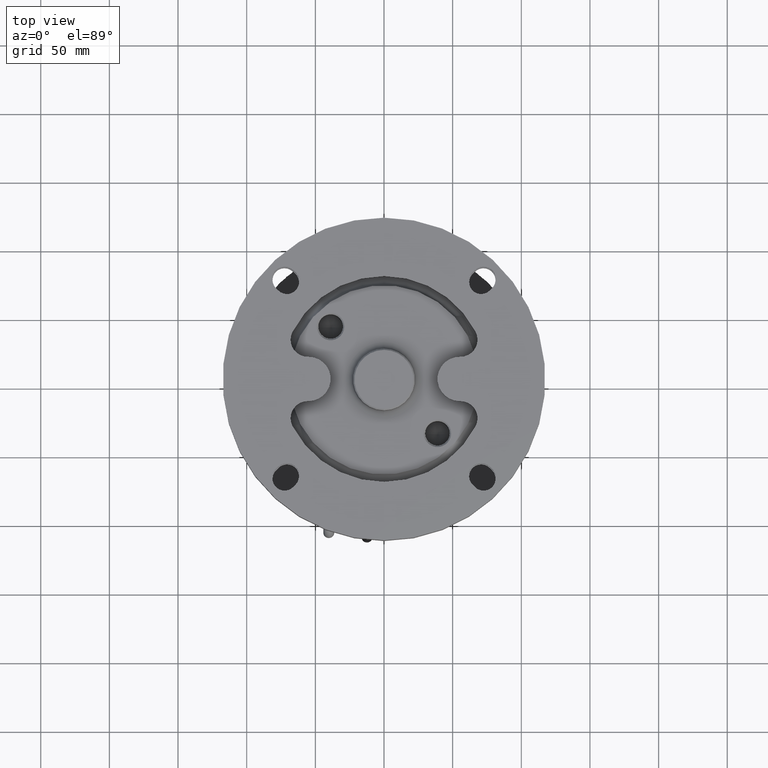
[diagram: clean part render]
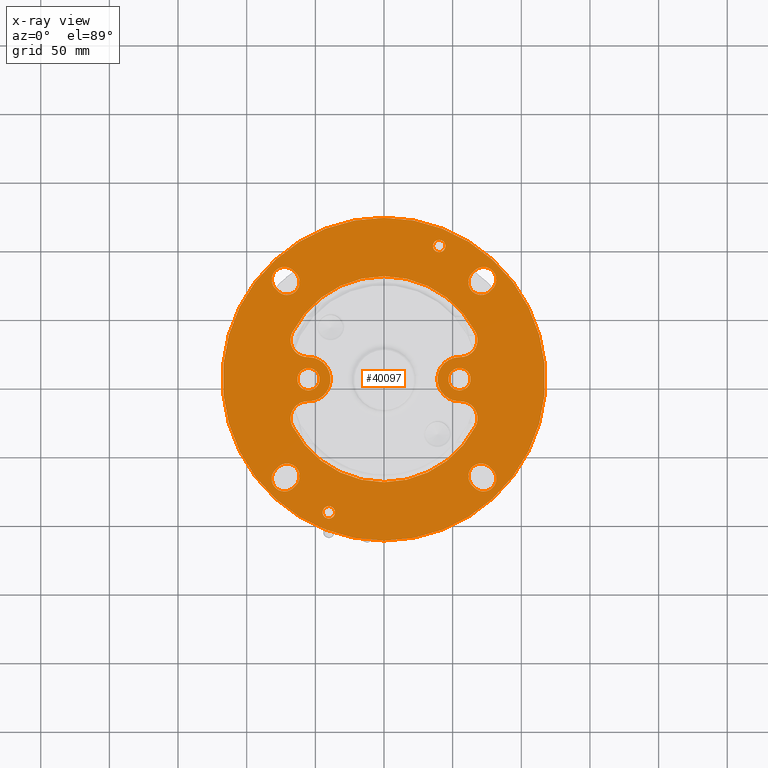
[diagram: x-ray — body ghosted, one internal face saturated and labeled with its STEP entity id]
A machine part, top view, then the same camera in x-ray: the body is ghosted and one INTERNAL B-rep face — a face not visible from any outside direction — is saturated and labeled: STEP entity #40097.
In plain terms, the highlighted planar face has unit normal (0, 0, -1).
Its self-contained STEP definition (entity closure, byte-faithful):
#87 = VERTEX_POINT ( 'NONE', #25369 ) ;
#223 = VERTEX_POINT ( 'NONE', #40221 ) ;
#416 = DIRECTION ( 'NONE',  ( 1.000000000000000000, 0.0000000000000000000, 0.0000000000000000000 ) ) ;
#529 = VERTEX_POINT ( 'NONE', #31885 ) ;
#621 = CARTESIAN_POINT ( 'NONE',  ( -77.25141584462990400, -64.16994039267960700, -5.000000000000000000 ) ) ;
#686 = CARTESIAN_POINT ( 'NONE',  ( -77.25141584462998900, 64.16994039267960700, -5.000000000000000000 ) ) ;
#834 = CARTESIAN_POINT ( 'NONE',  ( -66.68686227436400300, -34.32000000000000000, -5.000000000000000000 ) ) ;
#922 = DIRECTION ( 'NONE',  ( 0.0000000000000000000, 1.000000000000000000, 0.0000000000000000000 ) ) ;
#976 = VERTEX_POINT ( 'NONE', #24573 ) ;
#998 = CIRCLE ( 'NONE', #2788, 16.10000000000000100 ) ;
#1062 = AXIS2_PLACEMENT_3D ( 'NONE', #29042, #1649, #36020 ) ;
#1110 = CARTESIAN_POINT ( 'NONE',  ( -40.18176039833385000, -92.50735091368530000, -5.000000000000000000 ) ) ;
#1132 = EDGE_CURVE ( 'NONE', #17272, #34413, #35323, .T. ) ;
#1177 = CIRCLE ( 'NONE', #14926, 8.099999999999999600 ) ;
#1201 = DIRECTION ( 'NONE',  ( 0.0000000000000000000, 1.000000000000000000, 0.0000000000000000000 ) ) ;
#1324 = AXIS2_PLACEMENT_3D ( 'NONE', #8229, #39067, #32325 ) ;
#1541 = ORIENTED_EDGE ( 'NONE', *, *, #9506, .F. ) ;
#1649 = DIRECTION ( 'NONE',  ( 0.0000000000000000000, 0.0000000000000000000, -1.000000000000000000 ) ) ;
#1710 = DIRECTION ( 'NONE',  ( 0.7071067811865450200, -0.7071067811865500200, 0.0000000000000000000 ) ) ;
#1790 = FACE_BOUND ( 'NONE', #43918, .T. ) ;
#1874 = CARTESIAN_POINT ( 'NONE',  ( 64.16994039267879700, -77.25141584463069900, -5.000000000000000000 ) ) ;
#1987 = DIRECTION ( 'NONE',  ( 0.0000000000000000000, 0.0000000000000000000, -1.000000000000000000 ) ) ;
#2109 = CARTESIAN_POINT ( 'NONE',  ( -65.93770734564509400, -79.01918279759709700, -5.000000000000000000 ) ) ;
#2311 = DIRECTION ( 'NONE',  ( 0.0000000000000000000, -1.000000000000000000, 0.0000000000000000000 ) ) ;
#2603 = DIRECTION ( 'NONE',  ( 0.0000000000000000000, 1.000000000000000000, 0.0000000000000000000 ) ) ;
#2788 = AXIS2_PLACEMENT_3D ( 'NONE', #29937, #9418, #16471 ) ;
#2880 = EDGE_LOOP ( 'NONE', ( #30094, #40213, #23121, #33719, #16397, #1541, #30459, #32265, #19745, #27854, #22064, #26514, #12609 ) ) ;
#2971 = CARTESIAN_POINT ( 'NONE',  ( 40.18176039833385000, 101.5073509136853000, -5.000000000000000000 ) ) ;
#3054 = AXIS2_PLACEMENT_3D ( 'NONE', #31293, #21423, #922 ) ;
#3130 = ORIENTED_EDGE ( 'NONE', *, *, #38947, .T. ) ;
#3463 = DIRECTION ( 'NONE',  ( 0.0000000000000000000, 1.000000000000000000, 0.0000000000000000000 ) ) ;
#3674 = EDGE_CURVE ( 'NONE', #18412, #33344, #998, .T. ) ;
#3845 = AXIS2_PLACEMENT_3D ( 'NONE', #15317, #42694, #12027 ) ;
#3861 = VERTEX_POINT ( 'NONE', #14191 ) ;
#4079 = CIRCLE ( 'NONE', #42980, 117.5000000000000000 ) ;
#4274 = CARTESIAN_POINT ( 'NONE',  ( -55.00000000000000000, 16.10000000000000100, -5.000000000000000000 ) ) ;
#4341 = DIRECTION ( 'NONE',  ( 0.0000000000000000000, 0.0000000000000000000, -1.000000000000000000 ) ) ;
#4467 = FACE_BOUND ( 'NONE', #24008, .T. ) ;
#4511 = VERTEX_POINT ( 'NONE', #41364 ) ;
#4536 = CARTESIAN_POINT ( 'NONE',  ( 55.00000000000000000, 16.10000000000000100, -5.000000000000000000 ) ) ;
#4575 = EDGE_CURVE ( 'NONE', #15392, #223, #33592, .T. ) ;
#4617 = CARTESIAN_POINT ( 'NONE',  ( -70.71067811865438600, 61.46067811865519600, -5.000000000000000000 ) ) ;
#4641 = CARTESIAN_POINT ( 'NONE',  ( -55.00000000000000000, 16.10000000000000100, -5.000000000000000000 ) ) ;
#4791 = CARTESIAN_POINT ( 'NONE',  ( 72.47844507162069800, -72.47844507162150800, -5.000000000000000000 ) ) ;
#4825 = CIRCLE ( 'NONE', #44010, 12.50000000000000000 ) ;
#4832 = DIRECTION ( 'NONE',  ( 0.7071067811865420200, -0.7071067811865531200, 0.0000000000000000000 ) ) ;
#5047 = ORIENTED_EDGE ( 'NONE', *, *, #41426, .F. ) ;
#5118 = CARTESIAN_POINT ( 'NONE',  ( 77.25141584462990400, -64.16994039267960700, -5.000000000000000000 ) ) ;
#5153 = DIRECTION ( 'NONE',  ( -0.7071067811865420200, 0.7071067811865531200, 0.0000000000000000000 ) ) ;
#5344 = AXIS2_PLACEMENT_3D ( 'NONE', #25785, #1987, #25935 ) ;
#5448 = EDGE_CURVE ( 'NONE', #40456, #4511, #21227, .T. ) ;
#5501 = AXIS2_PLACEMENT_3D ( 'NONE', #35928, #12153, #32201 ) ;
#5545 = FACE_BOUND ( 'NONE', #37853, .T. ) ;
#5578 = LINE ( 'NONE', #21145, #24357 ) ;
#5620 = CIRCLE ( 'NONE', #37645, 4.500000000000003600 ) ;
#5858 = VERTEX_POINT ( 'NONE', #28380 ) ;
#6037 = VERTEX_POINT ( 'NONE', #28326 ) ;
#6158 = VERTEX_POINT ( 'NONE', #37298 ) ;
#6178 = VERTEX_POINT ( 'NONE', #20296 ) ;
#6296 = AXIS2_PLACEMENT_3D ( 'NONE', #36597, #19587, #36313 ) ;
#6321 = EDGE_CURVE ( 'NONE', #17104, #40456, #7752, .T. ) ;
#6322 = VECTOR ( 'NONE', #8287, 999.9999999999998900 ) ;
#6710 = CARTESIAN_POINT ( 'NONE',  ( 70.71067811865420100, 61.46067811865519600, -5.000000000000000000 ) ) ;
#7307 = CARTESIAN_POINT ( 'NONE',  ( -55.57238522863669800, 28.60000000000000100, -5.000000000000000000 ) ) ;
#7423 = ORIENTED_EDGE ( 'NONE', *, *, #10870, .F. ) ;
#7444 = EDGE_CURVE ( 'NONE', #13512, #6178, #27053, .T. ) ;
#7495 = CARTESIAN_POINT ( 'NONE',  ( -55.57238522863669800, 16.10000000000000100, -5.000000000000000000 ) ) ;
#7751 = CARTESIAN_POINT ( 'NONE',  ( 0.0000000000000000000, 0.0000000000000000000, -5.000000000000000000 ) ) ;
#7752 = LINE ( 'NONE', #38959, #24365 ) ;
#7778 = CARTESIAN_POINT ( 'NONE',  ( 55.00000000000000000, -16.10000000000000100, -5.000000000000000000 ) ) ;
#7791 = CARTESIAN_POINT ( 'NONE',  ( 64.16994039267869700, 77.25141584463069900, -5.000000000000000000 ) ) ;
#7896 = DIRECTION ( 'NONE',  ( 0.0000000000000000000, 0.0000000000000000000, -1.000000000000000000 ) ) ;
#8221 = VECTOR ( 'NONE', #12176, 999.9999999999998900 ) ;
#8229 = CARTESIAN_POINT ( 'NONE',  ( 55.57238522863669800, 28.60000000000000100, -5.000000000000000000 ) ) ;
#8253 = DIRECTION ( 'NONE',  ( 0.0000000000000000000, -1.000000000000000000, 0.0000000000000000000 ) ) ;
#8259 = CARTESIAN_POINT ( 'NONE',  ( -64.16994039267879700, 77.25141584463069900, -5.000000000000000000 ) ) ;
#8287 = DIRECTION ( 'NONE',  ( -0.7071067811865420200, -0.7071067811865531200, 0.0000000000000000000 ) ) ;
#8447 = CARTESIAN_POINT ( 'NONE',  ( -55.57238522863669800, -16.10000000000000100, -5.000000000000000000 ) ) ;
#8540 = EDGE_CURVE ( 'NONE', #976, #40642, #25360, .T. ) ;
#8776 = EDGE_CURVE ( 'NONE', #34063, #20949, #22095, .T. ) ;
#8893 = DIRECTION ( 'NONE',  ( 0.0000000000000000000, 0.0000000000000000000, -1.000000000000000000 ) ) ;
#9079 = ORIENTED_EDGE ( 'NONE', *, *, #40163, .F. ) ;
#9163 = VERTEX_POINT ( 'NONE', #7778 ) ;
#9220 = FACE_BOUND ( 'NONE', #34138, .T. ) ;
#9305 = CARTESIAN_POINT ( 'NONE',  ( 70.71067811865438600, -70.71067811865519600, -5.000000000000000000 ) ) ;
#9418 = DIRECTION ( 'NONE',  ( 0.0000000000000000000, 0.0000000000000000000, 1.000000000000000000 ) ) ;
#9506 = EDGE_CURVE ( 'NONE', #38795, #18412, #29445, .T. ) ;
#9635 = ORIENTED_EDGE ( 'NONE', *, *, #41219, .F. ) ;
#9748 = CIRCLE ( 'NONE', #21694, 4.500000000000003600 ) ;
#9808 = CARTESIAN_POINT ( 'NONE',  ( 65.93770734564509400, -79.01918279759709700, -5.000000000000000000 ) ) ;
#9984 = ORIENTED_EDGE ( 'NONE', *, *, #29375, .F. ) ;
#10011 = DIRECTION ( 'NONE',  ( 0.0000000000000000000, 0.0000000000000000000, -1.000000000000000000 ) ) ;
#10255 = DIRECTION ( 'NONE',  ( 0.0000000000000000000, 0.0000000000000000000, -1.000000000000000000 ) ) ;
#10374 = EDGE_CURVE ( 'NONE', #33344, #38220, #27906, .T. ) ;
#10402 = DIRECTION ( 'NONE',  ( 0.0000000000000000000, 1.000000000000000000, 0.0000000000000000000 ) ) ;
#10449 = ORIENTED_EDGE ( 'NONE', *, *, #40347, .F. ) ;
#10637 = DIRECTION ( 'NONE',  ( 0.0000000000000000000, 0.0000000000000000000, -1.000000000000000000 ) ) ;
#10649 = VERTEX_POINT ( 'NONE', #2971 ) ;
#10770 = DIRECTION ( 'NONE',  ( 0.0000000000000000000, 1.000000000000000000, 0.0000000000000000000 ) ) ;
#10868 = FACE_BOUND ( 'NONE', #33636, .T. ) ;
#10870 = EDGE_CURVE ( 'NONE', #87, #39557, #28256, .T. ) ;
#10947 = DIRECTION ( 'NONE',  ( 0.7071067811865420200, 0.7071067811865531200, 0.0000000000000000000 ) ) ;
#10989 = CARTESIAN_POINT ( 'NONE',  ( -55.00000000000000000, -1.347111479062089800E-014, -5.000000000000000000 ) ) ;
#11263 = DIRECTION ( 'NONE',  ( -0.7071067811865450200, -0.7071067811865500200, 0.0000000000000000000 ) ) ;
#11356 = CARTESIAN_POINT ( 'NONE',  ( 65.93770734564499500, 79.01918279759709700, -5.000000000000000000 ) ) ;
#11366 = DIRECTION ( 'NONE',  ( 0.0000000000000000000, 0.0000000000000000000, -1.000000000000000000 ) ) ;
#11615 = VECTOR ( 'NONE', #12620, 1000.000000000000000 ) ;
#11921 = EDGE_LOOP ( 'NONE', ( #42564, #41409, #36081, #38493, #43648 ) ) ;
#12012 = DIRECTION ( 'NONE',  ( 0.0000000000000000000, 0.0000000000000000000, 1.000000000000000000 ) ) ;
#12027 = DIRECTION ( 'NONE',  ( 0.0000000000000000000, -1.000000000000000000, 0.0000000000000000000 ) ) ;
#12040 = CARTESIAN_POINT ( 'NONE',  ( 77.25141584462980400, 64.16994039267960700, -5.000000000000000000 ) ) ;
#12069 = EDGE_CURVE ( 'NONE', #27097, #31397, #22241, .T. ) ;
#12153 = DIRECTION ( 'NONE',  ( 0.0000000000000000000, 0.0000000000000000000, -1.000000000000000000 ) ) ;
#12176 = DIRECTION ( 'NONE',  ( -0.7071067811865420200, 0.7071067811865531200, 0.0000000000000000000 ) ) ;
#12333 = VERTEX_POINT ( 'NONE', #28866 ) ;
#12359 = CIRCLE ( 'NONE', #27145, 9.249999999999994700 ) ;
#12423 = AXIS2_PLACEMENT_3D ( 'NONE', #28804, #12012, #8253 ) ;
#12512 = CARTESIAN_POINT ( 'NONE',  ( 55.00000000000000000, -1.347111479062089800E-014, -5.000000000000000000 ) ) ;
#12609 = ORIENTED_EDGE ( 'NONE', *, *, #19699, .F. ) ;
#12620 = DIRECTION ( 'NONE',  ( 1.000000000000000000, 0.0000000000000000000, 0.0000000000000000000 ) ) ;
#12642 = EDGE_CURVE ( 'NONE', #31397, #87, #40368, .T. ) ;
#12870 = CARTESIAN_POINT ( 'NONE',  ( 40.18176039833385000, 92.50735091368530000, -5.000000000000000000 ) ) ;
#13160 = EDGE_CURVE ( 'NONE', #25033, #13512, #28048, .T. ) ;
#13285 = CARTESIAN_POINT ( 'NONE',  ( -64.16994039267879700, -77.25141584463069900, -5.000000000000000000 ) ) ;
#13307 = DIRECTION ( 'NONE',  ( 0.0000000000000000000, 0.0000000000000000000, -1.000000000000000000 ) ) ;
#13512 = VERTEX_POINT ( 'NONE', #29216 ) ;
#13898 = AXIS2_PLACEMENT_3D ( 'NONE', #27929, #34755, #23826 ) ;
#14113 = CARTESIAN_POINT ( 'NONE',  ( 77.25141584462980400, 64.16994039267960700, -5.000000000000000000 ) ) ;
#14191 = CARTESIAN_POINT ( 'NONE',  ( 0.0000000000000000000, -75.00000000000000000, -5.000000000000000000 ) ) ;
#14209 = EDGE_CURVE ( 'NONE', #223, #15392, #34340, .T. ) ;
#14273 = DIRECTION ( 'NONE',  ( 0.0000000000000000000, -1.000000000000000000, 0.0000000000000000000 ) ) ;
#14595 = CARTESIAN_POINT ( 'NONE',  ( 55.00000000000000000, -1.347111479062089800E-014, -5.000000000000000000 ) ) ;
#14733 = DIRECTION ( 'NONE',  ( 0.0000000000000000000, 0.0000000000000000000, -1.000000000000000000 ) ) ;
#14905 = CIRCLE ( 'NONE', #5344, 9.249999999999994700 ) ;
#14926 = AXIS2_PLACEMENT_3D ( 'NONE', #12512, #8893, #36421 ) ;
#15161 = EDGE_LOOP ( 'NONE', ( #33029, #26703 ) ) ;
#15175 = DIRECTION ( 'NONE',  ( 0.0000000000000000000, 0.0000000000000000000, 1.000000000000000000 ) ) ;
#15224 = VECTOR ( 'NONE', #4832, 999.9999999999998900 ) ;
#15303 = EDGE_CURVE ( 'NONE', #38220, #32013, #4825, .T. ) ;
#15317 = CARTESIAN_POINT ( 'NONE',  ( -72.47844507162069800, -72.47844507162150800, -5.000000000000000000 ) ) ;
#15392 = VERTEX_POINT ( 'NONE', #22014 ) ;
#15409 = ORIENTED_EDGE ( 'NONE', *, *, #8540, .F. ) ;
#15620 = ORIENTED_EDGE ( 'NONE', *, *, #14209, .F. ) ;
#16001 = ORIENTED_EDGE ( 'NONE', *, *, #42262, .F. ) ;
#16037 = AXIS2_PLACEMENT_3D ( 'NONE', #7751, #38894, #28615 ) ;
#16080 = LINE ( 'NONE', #621, #19835 ) ;
#16110 = VECTOR ( 'NONE', #24998, 1000.000000000000000 ) ;
#16188 = EDGE_LOOP ( 'NONE', ( #29406, #39874 ) ) ;
#16277 = LINE ( 'NONE', #1874, #8221 ) ;
#16397 = ORIENTED_EDGE ( 'NONE', *, *, #3674, .F. ) ;
#16471 = DIRECTION ( 'NONE',  ( 0.0000000000000000000, -1.000000000000000000, 0.0000000000000000000 ) ) ;
#16666 = DIRECTION ( 'NONE',  ( 0.0000000000000000000, 0.0000000000000000000, -1.000000000000000000 ) ) ;
#16903 = DIRECTION ( 'NONE',  ( 0.0000000000000000000, 0.0000000000000000000, -1.000000000000000000 ) ) ;
#16924 = CARTESIAN_POINT ( 'NONE',  ( -66.68686227436400300, 34.32000000000000000, -5.000000000000000000 ) ) ;
#17104 = VERTEX_POINT ( 'NONE', #13285 ) ;
#17173 = CARTESIAN_POINT ( 'NONE',  ( -55.00000000000000000, -16.10000000000000100, -5.000000000000000000 ) ) ;
#17272 = VERTEX_POINT ( 'NONE', #26113 ) ;
#17398 = AXIS2_PLACEMENT_3D ( 'NONE', #28457, #7896, #1201 ) ;
#17669 = EDGE_CURVE ( 'NONE', #6178, #27656, #31444, .T. ) ;
#17691 = DIRECTION ( 'NONE',  ( 0.0000000000000000000, -1.000000000000000000, 0.0000000000000000000 ) ) ;
#18111 = CIRCLE ( 'NONE', #21161, 9.249999999999994700 ) ;
#18238 = AXIS2_PLACEMENT_3D ( 'NONE', #23245, #23101, #2311 ) ;
#18412 = VERTEX_POINT ( 'NONE', #38437 ) ;
#18990 = VECTOR ( 'NONE', #1710, 1000.000000000000000 ) ;
#19099 = EDGE_CURVE ( 'NONE', #40642, #976, #1177, .T. ) ;
#19289 = DIRECTION ( 'NONE',  ( 0.0000000000000000000, -1.000000000000000000, 0.0000000000000000000 ) ) ;
#19453 = CIRCLE ( 'NONE', #18238, 4.500000000000003600 ) ;
#19454 = CARTESIAN_POINT ( 'NONE',  ( -79.01918279759630100, 65.93770734564599000, -5.000000000000000000 ) ) ;
#19587 = DIRECTION ( 'NONE',  ( 0.0000000000000000000, 0.0000000000000000000, -1.000000000000000000 ) ) ;
#19589 = VERTEX_POINT ( 'NONE', #14113 ) ;
#19653 = CARTESIAN_POINT ( 'NONE',  ( 55.00000000000000000, -16.10000000000000100, -5.000000000000000000 ) ) ;
#19699 = EDGE_CURVE ( 'NONE', #34413, #5858, #23433, .T. ) ;
#19745 = ORIENTED_EDGE ( 'NONE', *, *, #43863, .F. ) ;
#19835 = VECTOR ( 'NONE', #37697, 999.9999999999998900 ) ;
#19893 = AXIS2_PLACEMENT_3D ( 'NONE', #23793, #13307, #37381 ) ;
#20245 = PLANE ( 'NONE',  #28599 ) ;
#20296 = CARTESIAN_POINT ( 'NONE',  ( 79.01918279759630100, -65.93770734564599000, -5.000000000000000000 ) ) ;
#20824 = AXIS2_PLACEMENT_3D ( 'NONE', #34396, #10011, #34239 ) ;
#20846 = CARTESIAN_POINT ( 'NONE',  ( -65.93770734564509400, 79.01918279759709700, -5.000000000000000000 ) ) ;
#20903 = CARTESIAN_POINT ( 'NONE',  ( 0.0000000000000000000, 0.0000000000000000000, -5.000000000000000000 ) ) ;
#20949 = VERTEX_POINT ( 'NONE', #28389 ) ;
#21019 = VERTEX_POINT ( 'NONE', #686 ) ;
#21035 = VERTEX_POINT ( 'NONE', #834 ) ;
#21145 = CARTESIAN_POINT ( 'NONE',  ( 64.16994039267869700, 77.25141584463069900, -5.000000000000000000 ) ) ;
#21161 = AXIS2_PLACEMENT_3D ( 'NONE', #29421, #32829, #39713 ) ;
#21227 = CIRCLE ( 'NONE', #20824, 9.249999999999994700 ) ;
#21423 = DIRECTION ( 'NONE',  ( 0.0000000000000000000, 0.0000000000000000000, -1.000000000000000000 ) ) ;
#21481 = DIRECTION ( 'NONE',  ( 0.0000000000000000000, -1.000000000000000000, 0.0000000000000000000 ) ) ;
#21694 = AXIS2_PLACEMENT_3D ( 'NONE', #32652, #15175, #39243 ) ;
#22014 = CARTESIAN_POINT ( 'NONE',  ( -55.00000000000000000, 8.099999999999985400, -5.000000000000000000 ) ) ;
#22064 = ORIENTED_EDGE ( 'NONE', *, *, #30221, .F. ) ;
#22095 = CIRCLE ( 'NONE', #19893, 12.49999999999999600 ) ;
#22196 = DIRECTION ( 'NONE',  ( -1.000000000000000000, 0.0000000000000000000, 0.0000000000000000000 ) ) ;
#22241 = CIRCLE ( 'NONE', #33756, 9.249999999999994700 ) ;
#22745 = CIRCLE ( 'NONE', #1062, 9.250000000000001800 ) ;
#22782 = ORIENTED_EDGE ( 'NONE', *, *, #36377, .T. ) ;
#23101 = DIRECTION ( 'NONE',  ( 0.0000000000000000000, 0.0000000000000000000, 1.000000000000000000 ) ) ;
#23121 = ORIENTED_EDGE ( 'NONE', *, *, #15303, .F. ) ;
#23245 = CARTESIAN_POINT ( 'NONE',  ( 40.18176039833385000, 97.00735091368530000, -5.000000000000000000 ) ) ;
#23247 = CIRCLE ( 'NONE', #3845, 9.249999999999994700 ) ;
#23254 = DIRECTION ( 'NONE',  ( 0.0000000000000000000, 1.000000000000000000, 0.0000000000000000000 ) ) ;
#23433 = LINE ( 'NONE', #4536, #41011 ) ;
#23531 = DIRECTION ( 'NONE',  ( 0.0000000000000000000, 0.0000000000000000000, -1.000000000000000000 ) ) ;
#23793 = CARTESIAN_POINT ( 'NONE',  ( 55.57238522863669800, -28.60000000000000100, -5.000000000000000000 ) ) ;
#23826 = DIRECTION ( 'NONE',  ( 0.0000000000000000000, 1.000000000000000000, 0.0000000000000000000 ) ) ;
#24008 = EDGE_LOOP ( 'NONE', ( #15409, #26587 ) ) ;
#24159 = EDGE_CURVE ( 'NONE', #26878, #12333, #34682, .T. ) ;
#24231 = EDGE_CURVE ( 'NONE', #5858, #9163, #29402, .T. ) ;
#24340 = CARTESIAN_POINT ( 'NONE',  ( 55.57238522863669800, 16.10000000000000100, -5.000000000000000000 ) ) ;
#24357 = VECTOR ( 'NONE', #10947, 999.9999999999998900 ) ;
#24365 = VECTOR ( 'NONE', #11263, 1000.000000000000000 ) ;
#24402 = CARTESIAN_POINT ( 'NONE',  ( 0.0000000000000000000, 0.0000000000000000000, -5.000000000000000000 ) ) ;
#24469 = ORIENTED_EDGE ( 'NONE', *, *, #31459, .F. ) ;
#24573 = CARTESIAN_POINT ( 'NONE',  ( 55.00000000000000000, -8.100000000000013900, -5.000000000000000000 ) ) ;
#24664 = EDGE_CURVE ( 'NONE', #32013, #17272, #40515, .T. ) ;
#24838 = CIRCLE ( 'NONE', #42316, 75.00000000000000000 ) ;
#24854 = DIRECTION ( 'NONE',  ( 0.0000000000000000000, -1.000000000000000000, 0.0000000000000000000 ) ) ;
#24998 = DIRECTION ( 'NONE',  ( -1.000000000000000000, 0.0000000000000000000, 0.0000000000000000000 ) ) ;
#25033 = VERTEX_POINT ( 'NONE', #28858 ) ;
#25085 = DIRECTION ( 'NONE',  ( 0.0000000000000000000, 1.000000000000000000, 0.0000000000000000000 ) ) ;
#25099 = AXIS2_PLACEMENT_3D ( 'NONE', #34419, #34858, #3463 ) ;
#25360 = CIRCLE ( 'NONE', #17398, 8.099999999999999600 ) ;
#25369 = CARTESIAN_POINT ( 'NONE',  ( -64.16994039267879700, 77.25141584463069900, -5.000000000000000000 ) ) ;
#25655 = ORIENTED_EDGE ( 'NONE', *, *, #26155, .F. ) ;
#25677 = CARTESIAN_POINT ( 'NONE',  ( -77.25141584462998900, 64.16994039267960700, -5.000000000000000000 ) ) ;
#25775 = EDGE_CURVE ( 'NONE', #10649, #41559, #44229, .T. ) ;
#25785 = CARTESIAN_POINT ( 'NONE',  ( 72.47844507162059800, 72.47844507162150800, -5.000000000000000000 ) ) ;
#25918 = AXIS2_PLACEMENT_3D ( 'NONE', #9305, #26555, #23254 ) ;
#25935 = DIRECTION ( 'NONE',  ( 0.0000000000000000000, -1.000000000000000000, 0.0000000000000000000 ) ) ;
#25994 = VERTEX_POINT ( 'NONE', #11356 ) ;
#26113 = CARTESIAN_POINT ( 'NONE',  ( 66.68686227436400300, 34.32000000000000000, -5.000000000000000000 ) ) ;
#26155 = EDGE_CURVE ( 'NONE', #19589, #41897, #22745, .T. ) ;
#26304 = DIRECTION ( 'NONE',  ( 0.0000000000000000000, 0.0000000000000000000, -1.000000000000000000 ) ) ;
#26514 = ORIENTED_EDGE ( 'NONE', *, *, #24231, .F. ) ;
#26555 = DIRECTION ( 'NONE',  ( 0.0000000000000000000, 0.0000000000000000000, -1.000000000000000000 ) ) ;
#26587 = ORIENTED_EDGE ( 'NONE', *, *, #19099, .F. ) ;
#26703 = ORIENTED_EDGE ( 'NONE', *, *, #25775, .T. ) ;
#26878 = VERTEX_POINT ( 'NONE', #40771 ) ;
#26916 = VERTEX_POINT ( 'NONE', #7791 ) ;
#27053 = LINE ( 'NONE', #5118, #15224 ) ;
#27097 = VERTEX_POINT ( 'NONE', #19454 ) ;
#27145 = AXIS2_PLACEMENT_3D ( 'NONE', #4791, #4341, #28762 ) ;
#27207 = VERTEX_POINT ( 'NONE', #27659 ) ;
#27656 = VERTEX_POINT ( 'NONE', #38473 ) ;
#27659 = CARTESIAN_POINT ( 'NONE',  ( -77.25141584462990400, -64.16994039267960700, -5.000000000000000000 ) ) ;
#27854 = ORIENTED_EDGE ( 'NONE', *, *, #8776, .F. ) ;
#27872 = DIRECTION ( 'NONE',  ( 0.0000000000000000000, 0.0000000000000000000, -1.000000000000000000 ) ) ;
#27877 = CIRCLE ( 'NONE', #39160, 9.249999999999994700 ) ;
#27906 = LINE ( 'NONE', #4641, #16110 ) ;
#27929 = CARTESIAN_POINT ( 'NONE',  ( -70.71067811865438600, 70.71067811865519600, -5.000000000000000000 ) ) ;
#28048 = CIRCLE ( 'NONE', #25918, 9.250000000000001800 ) ;
#28256 = CIRCLE ( 'NONE', #13898, 9.249999999999994700 ) ;
#28326 = CARTESIAN_POINT ( 'NONE',  ( -40.18176039833385000, -101.5073509136853000, -5.000000000000000000 ) ) ;
#28377 = VECTOR ( 'NONE', #416, 1000.000000000000000 ) ;
#28380 = CARTESIAN_POINT ( 'NONE',  ( 55.00000000000000000, 16.10000000000000100, -5.000000000000000000 ) ) ;
#28389 = CARTESIAN_POINT ( 'NONE',  ( 66.68686227436400300, -34.32000000000000000, -5.000000000000000000 ) ) ;
#28457 = CARTESIAN_POINT ( 'NONE',  ( 55.00000000000000000, -1.347111479062089800E-014, -5.000000000000000000 ) ) ;
#28599 = AXIS2_PLACEMENT_3D ( 'NONE', #36955, #23531, #30383 ) ;
#28615 = DIRECTION ( 'NONE',  ( 0.0000000000000000000, 1.000000000000000000, 0.0000000000000000000 ) ) ;
#28762 = DIRECTION ( 'NONE',  ( 0.0000000000000000000, 1.000000000000000000, 0.0000000000000000000 ) ) ;
#28804 = CARTESIAN_POINT ( 'NONE',  ( 40.18176039833385000, 97.00735091368530000, -5.000000000000000000 ) ) ;
#28858 = CARTESIAN_POINT ( 'NONE',  ( 64.16994039267879700, -77.25141584463069900, -5.000000000000000000 ) ) ;
#28866 = CARTESIAN_POINT ( 'NONE',  ( 1.438959988998139900E-014, 117.5000000000000000, -5.000000000000000000 ) ) ;
#29042 = CARTESIAN_POINT ( 'NONE',  ( 70.71067811865420100, 70.71067811865519600, -5.000000000000000000 ) ) ;
#29216 = CARTESIAN_POINT ( 'NONE',  ( 77.25141584462990400, -64.16994039267960700, -5.000000000000000000 ) ) ;
#29375 = EDGE_CURVE ( 'NONE', #41897, #26916, #37901, .T. ) ;
#29390 = LINE ( 'NONE', #25677, #30420 ) ;
#29402 = CIRCLE ( 'NONE', #34833, 16.10000000000000100 ) ;
#29406 = ORIENTED_EDGE ( 'NONE', *, *, #24159, .T. ) ;
#29421 = CARTESIAN_POINT ( 'NONE',  ( -70.71067811865438600, 70.71067811865519600, -5.000000000000000000 ) ) ;
#29445 = LINE ( 'NONE', #17173, #28377 ) ;
#29937 = CARTESIAN_POINT ( 'NONE',  ( -55.00000000000000000, -1.347111479062089800E-014, -5.000000000000000000 ) ) ;
#30094 = ORIENTED_EDGE ( 'NONE', *, *, #1132, .F. ) ;
#30215 = FACE_BOUND ( 'NONE', #37634, .T. ) ;
#30221 = EDGE_CURVE ( 'NONE', #9163, #34063, #34602, .T. ) ;
#30383 = DIRECTION ( 'NONE',  ( 0.0000000000000000000, 1.000000000000000000, 0.0000000000000000000 ) ) ;
#30420 = VECTOR ( 'NONE', #5153, 999.9999999999998900 ) ;
#30459 = ORIENTED_EDGE ( 'NONE', *, *, #39333, .F. ) ;
#30534 = ORIENTED_EDGE ( 'NONE', *, *, #37305, .F. ) ;
#31293 = CARTESIAN_POINT ( 'NONE',  ( 72.47844507162069800, -72.47844507162150800, -5.000000000000000000 ) ) ;
#31397 = VERTEX_POINT ( 'NONE', #20846 ) ;
#31444 = CIRCLE ( 'NONE', #3054, 9.249999999999994700 ) ;
#31459 = EDGE_CURVE ( 'NONE', #26916, #25994, #5578, .T. ) ;
#31570 = CARTESIAN_POINT ( 'NONE',  ( -70.71067811865438600, -70.71067811865519600, -5.000000000000000000 ) ) ;
#31707 = ORIENTED_EDGE ( 'NONE', *, *, #41143, .F. ) ;
#31885 = CARTESIAN_POINT ( 'NONE',  ( 79.01918279759618700, 65.93770734564599000, -5.000000000000000000 ) ) ;
#32013 = VERTEX_POINT ( 'NONE', #16924 ) ;
#32201 = DIRECTION ( 'NONE',  ( 0.0000000000000000000, -1.000000000000000000, 0.0000000000000000000 ) ) ;
#32203 = CIRCLE ( 'NONE', #25099, 12.50000000000000000 ) ;
#32265 = ORIENTED_EDGE ( 'NONE', *, *, #38383, .F. ) ;
#32325 = DIRECTION ( 'NONE',  ( 0.0000000000000000000, 1.000000000000000000, 0.0000000000000000000 ) ) ;
#32652 = CARTESIAN_POINT ( 'NONE',  ( -40.18176039833385000, -97.00735091368530000, -5.000000000000000000 ) ) ;
#32829 = DIRECTION ( 'NONE',  ( 0.0000000000000000000, 0.0000000000000000000, -1.000000000000000000 ) ) ;
#33029 = ORIENTED_EDGE ( 'NONE', *, *, #39083, .T. ) ;
#33344 = VERTEX_POINT ( 'NONE', #4274 ) ;
#33507 = CIRCLE ( 'NONE', #16037, 75.00000000000000000 ) ;
#33592 = CIRCLE ( 'NONE', #34626, 8.099999999999999600 ) ;
#33602 = ORIENTED_EDGE ( 'NONE', *, *, #12642, .F. ) ;
#33636 = EDGE_LOOP ( 'NONE', ( #43940, #10449, #9079, #30534, #34586 ) ) ;
#33719 = ORIENTED_EDGE ( 'NONE', *, *, #10374, .F. ) ;
#33756 = AXIS2_PLACEMENT_3D ( 'NONE', #37348, #16903, #41104 ) ;
#34063 = VERTEX_POINT ( 'NONE', #35170 ) ;
#34138 = EDGE_LOOP ( 'NONE', ( #24469, #9984, #25655, #31707, #5047 ) ) ;
#34239 = DIRECTION ( 'NONE',  ( 0.0000000000000000000, -1.000000000000000000, 0.0000000000000000000 ) ) ;
#34319 = VERTEX_POINT ( 'NONE', #9808 ) ;
#34340 = CIRCLE ( 'NONE', #5501, 8.099999999999999600 ) ;
#34396 = CARTESIAN_POINT ( 'NONE',  ( -72.47844507162069800, -72.47844507162150800, -5.000000000000000000 ) ) ;
#34413 = VERTEX_POINT ( 'NONE', #24340 ) ;
#34419 = CARTESIAN_POINT ( 'NONE',  ( -55.57238522863669800, -28.60000000000000100, -5.000000000000000000 ) ) ;
#34568 = AXIS2_PLACEMENT_3D ( 'NONE', #39741, #26304, #19289 ) ;
#34586 = ORIENTED_EDGE ( 'NONE', *, *, #5448, .F. ) ;
#34602 = LINE ( 'NONE', #19653, #11615 ) ;
#34626 = AXIS2_PLACEMENT_3D ( 'NONE', #10989, #14733, #21481 ) ;
#34682 = CIRCLE ( 'NONE', #41720, 117.5000000000000000 ) ;
#34755 = DIRECTION ( 'NONE',  ( 0.0000000000000000000, 0.0000000000000000000, -1.000000000000000000 ) ) ;
#34764 = DIRECTION ( 'NONE',  ( 0.0000000000000000000, 0.0000000000000000000, 1.000000000000000000 ) ) ;
#34833 = AXIS2_PLACEMENT_3D ( 'NONE', #14595, #42120, #25085 ) ;
#34858 = DIRECTION ( 'NONE',  ( 0.0000000000000000000, 0.0000000000000000000, -1.000000000000000000 ) ) ;
#34988 = FACE_BOUND ( 'NONE', #2880, .T. ) ;
#35170 = CARTESIAN_POINT ( 'NONE',  ( 55.57238522863669800, -16.10000000000000100, -5.000000000000000000 ) ) ;
#35323 = CIRCLE ( 'NONE', #1324, 12.49999999999999600 ) ;
#35928 = CARTESIAN_POINT ( 'NONE',  ( -55.00000000000000000, -1.347111479062089800E-014, -5.000000000000000000 ) ) ;
#36020 = DIRECTION ( 'NONE',  ( 0.0000000000000000000, -1.000000000000000000, 0.0000000000000000000 ) ) ;
#36081 = ORIENTED_EDGE ( 'NONE', *, *, #37317, .F. ) ;
#36232 = ORIENTED_EDGE ( 'NONE', *, *, #12069, .F. ) ;
#36313 = DIRECTION ( 'NONE',  ( 0.0000000000000000000, 1.000000000000000000, 0.0000000000000000000 ) ) ;
#36377 = EDGE_CURVE ( 'NONE', #39823, #6037, #5620, .T. ) ;
#36421 = DIRECTION ( 'NONE',  ( 0.0000000000000000000, 1.000000000000000000, 0.0000000000000000000 ) ) ;
#36597 = CARTESIAN_POINT ( 'NONE',  ( 0.0000000000000000000, 0.0000000000000000000, -5.000000000000000000 ) ) ;
#36612 = FACE_OUTER_BOUND ( 'NONE', #16188, .T. ) ;
#36955 = CARTESIAN_POINT ( 'NONE',  ( 0.0000000000000000000, 0.0000000000000000000, -5.000000000000000000 ) ) ;
#37298 = CARTESIAN_POINT ( 'NONE',  ( -79.01918279759630100, -65.93770734564599000, -5.000000000000000000 ) ) ;
#37305 = EDGE_CURVE ( 'NONE', #4511, #6158, #23247, .T. ) ;
#37317 = EDGE_CURVE ( 'NONE', #34319, #25033, #16277, .T. ) ;
#37348 = CARTESIAN_POINT ( 'NONE',  ( -72.47844507162069800, 72.47844507162150800, -5.000000000000000000 ) ) ;
#37358 = LINE ( 'NONE', #12040, #6322 ) ;
#37381 = DIRECTION ( 'NONE',  ( 0.0000000000000000000, -1.000000000000000000, 0.0000000000000000000 ) ) ;
#37634 = EDGE_LOOP ( 'NONE', ( #3130, #22782 ) ) ;
#37645 = AXIS2_PLACEMENT_3D ( 'NONE', #41058, #34764, #14273 ) ;
#37677 = FACE_BOUND ( 'NONE', #15161, .T. ) ;
#37697 = DIRECTION ( 'NONE',  ( 0.7071067811865420200, 0.7071067811865531200, 0.0000000000000000000 ) ) ;
#37853 = EDGE_LOOP ( 'NONE', ( #15620, #41184 ) ) ;
#37901 = CIRCLE ( 'NONE', #34568, 9.250000000000001800 ) ;
#38220 = VERTEX_POINT ( 'NONE', #7495 ) ;
#38383 = EDGE_CURVE ( 'NONE', #3861, #21035, #24838, .T. ) ;
#38437 = CARTESIAN_POINT ( 'NONE',  ( -55.00000000000000000, -16.10000000000000100, -5.000000000000000000 ) ) ;
#38473 = CARTESIAN_POINT ( 'NONE',  ( 72.47844507162069800, -81.72844507162149300, -5.000000000000000000 ) ) ;
#38493 = ORIENTED_EDGE ( 'NONE', *, *, #40309, .F. ) ;
#38733 = CARTESIAN_POINT ( 'NONE',  ( 55.00000000000000000, 8.099999999999985400, -5.000000000000000000 ) ) ;
#38795 = VERTEX_POINT ( 'NONE', #8447 ) ;
#38894 = DIRECTION ( 'NONE',  ( 0.0000000000000000000, 0.0000000000000000000, -1.000000000000000000 ) ) ;
#38947 = EDGE_CURVE ( 'NONE', #6037, #39823, #9748, .T. ) ;
#38959 = CARTESIAN_POINT ( 'NONE',  ( -64.16994039267879700, -77.25141584463069900, -5.000000000000000000 ) ) ;
#39067 = DIRECTION ( 'NONE',  ( 0.0000000000000000000, 0.0000000000000000000, -1.000000000000000000 ) ) ;
#39083 = EDGE_CURVE ( 'NONE', #41559, #10649, #19453, .T. ) ;
#39160 = AXIS2_PLACEMENT_3D ( 'NONE', #31570, #11366, #24854 ) ;
#39243 = DIRECTION ( 'NONE',  ( 0.0000000000000000000, -1.000000000000000000, 0.0000000000000000000 ) ) ;
#39333 = EDGE_CURVE ( 'NONE', #21035, #38795, #32203, .T. ) ;
#39557 = VERTEX_POINT ( 'NONE', #4617 ) ;
#39713 = DIRECTION ( 'NONE',  ( 0.0000000000000000000, 1.000000000000000000, 0.0000000000000000000 ) ) ;
#39741 = CARTESIAN_POINT ( 'NONE',  ( 70.71067811865420100, 70.71067811865519600, -5.000000000000000000 ) ) ;
#39823 = VERTEX_POINT ( 'NONE', #1110 ) ;
#39874 = ORIENTED_EDGE ( 'NONE', *, *, #43019, .T. ) ;
#40097 = ADVANCED_FACE ( 'NONE', ( #30215, #37677, #43618, #4467, #36612, #34988, #5545, #10868, #1790, #9220 ), #20245, .T. ) ;
#40163 = EDGE_CURVE ( 'NONE', #6158, #27207, #16080, .T. ) ;
#40213 = ORIENTED_EDGE ( 'NONE', *, *, #24664, .F. ) ;
#40221 = CARTESIAN_POINT ( 'NONE',  ( -55.00000000000000000, -8.100000000000013900, -5.000000000000000000 ) ) ;
#40309 = EDGE_CURVE ( 'NONE', #27656, #34319, #12359, .T. ) ;
#40347 = EDGE_CURVE ( 'NONE', #27207, #17104, #27877, .T. ) ;
#40368 = LINE ( 'NONE', #8259, #18990 ) ;
#40456 = VERTEX_POINT ( 'NONE', #2109 ) ;
#40515 = CIRCLE ( 'NONE', #6296, 75.00000000000000000 ) ;
#40570 = CARTESIAN_POINT ( 'NONE',  ( 0.0000000000000000000, 0.0000000000000000000, -5.000000000000000000 ) ) ;
#40642 = VERTEX_POINT ( 'NONE', #38733 ) ;
#40771 = CARTESIAN_POINT ( 'NONE',  ( 0.0000000000000000000, -117.5000000000000000, -5.000000000000000000 ) ) ;
#41011 = VECTOR ( 'NONE', #22196, 1000.000000000000000 ) ;
#41058 = CARTESIAN_POINT ( 'NONE',  ( -40.18176039833385000, -97.00735091368530000, -5.000000000000000000 ) ) ;
#41104 = DIRECTION ( 'NONE',  ( 0.0000000000000000000, 1.000000000000000000, 0.0000000000000000000 ) ) ;
#41143 = EDGE_CURVE ( 'NONE', #529, #19589, #37358, .T. ) ;
#41184 = ORIENTED_EDGE ( 'NONE', *, *, #4575, .F. ) ;
#41219 = EDGE_CURVE ( 'NONE', #21019, #27097, #29390, .T. ) ;
#41364 = CARTESIAN_POINT ( 'NONE',  ( -72.47844507162069800, -81.72844507162149300, -5.000000000000000000 ) ) ;
#41409 = ORIENTED_EDGE ( 'NONE', *, *, #13160, .F. ) ;
#41426 = EDGE_CURVE ( 'NONE', #25994, #529, #14905, .T. ) ;
#41559 = VERTEX_POINT ( 'NONE', #12870 ) ;
#41720 = AXIS2_PLACEMENT_3D ( 'NONE', #20903, #10255, #10402 ) ;
#41897 = VERTEX_POINT ( 'NONE', #6710 ) ;
#42120 = DIRECTION ( 'NONE',  ( 0.0000000000000000000, 0.0000000000000000000, 1.000000000000000000 ) ) ;
#42262 = EDGE_CURVE ( 'NONE', #39557, #21019, #18111, .T. ) ;
#42316 = AXIS2_PLACEMENT_3D ( 'NONE', #24402, #27872, #10770 ) ;
#42564 = ORIENTED_EDGE ( 'NONE', *, *, #7444, .F. ) ;
#42694 = DIRECTION ( 'NONE',  ( 0.0000000000000000000, 0.0000000000000000000, -1.000000000000000000 ) ) ;
#42980 = AXIS2_PLACEMENT_3D ( 'NONE', #40570, #16666, #2603 ) ;
#43019 = EDGE_CURVE ( 'NONE', #12333, #26878, #4079, .T. ) ;
#43618 = FACE_BOUND ( 'NONE', #11921, .T. ) ;
#43648 = ORIENTED_EDGE ( 'NONE', *, *, #17669, .F. ) ;
#43863 = EDGE_CURVE ( 'NONE', #20949, #3861, #33507, .T. ) ;
#43918 = EDGE_LOOP ( 'NONE', ( #9635, #16001, #7423, #33602, #36232 ) ) ;
#43940 = ORIENTED_EDGE ( 'NONE', *, *, #6321, .F. ) ;
#44010 = AXIS2_PLACEMENT_3D ( 'NONE', #7307, #10637, #17691 ) ;
#44229 = CIRCLE ( 'NONE', #12423, 4.500000000000003600 ) ;